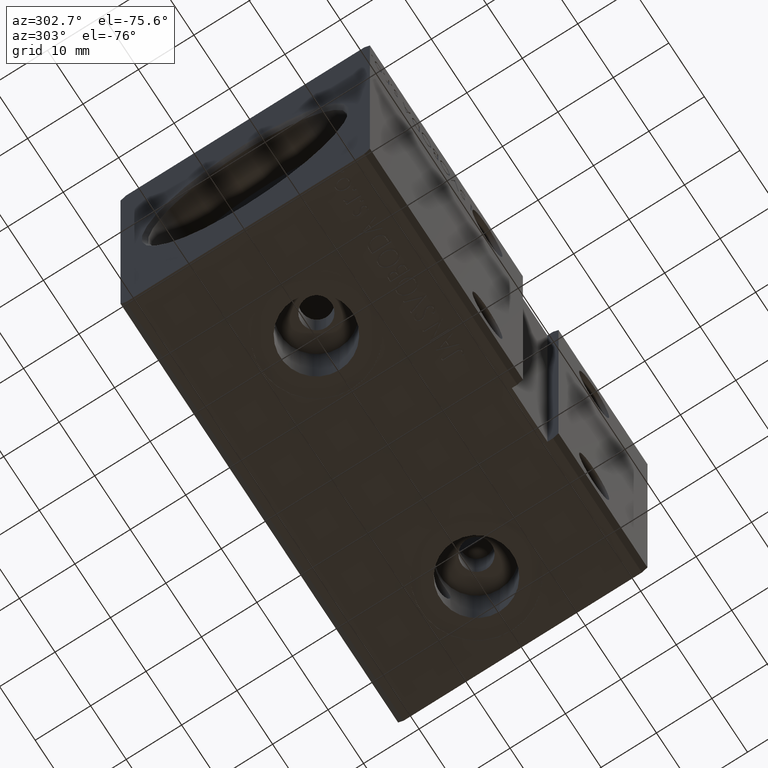
[diagram: clean part render]
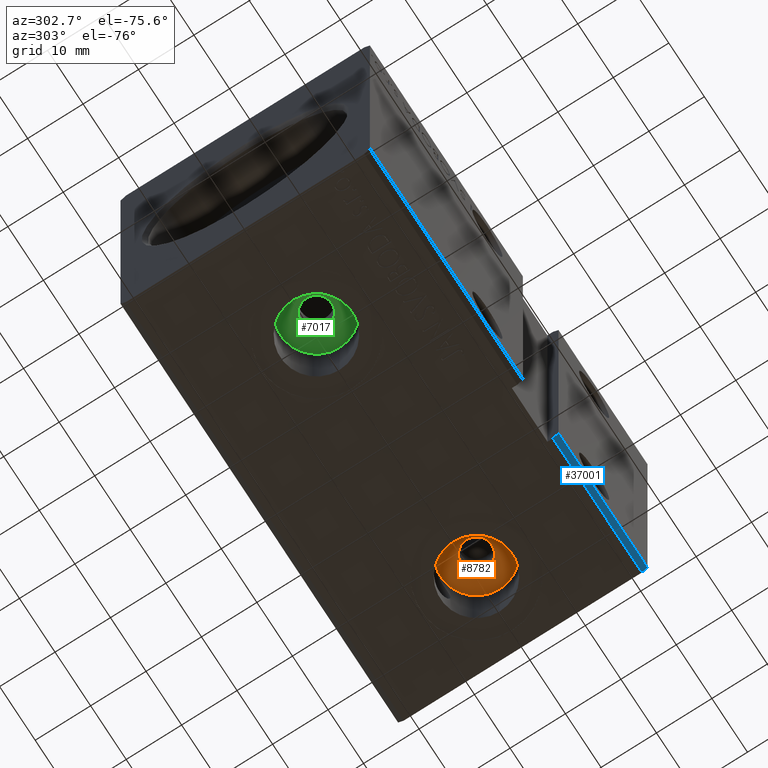
[diagram: same view with three faces highlighted in distinct colors, each labeled with its STEP entity id]
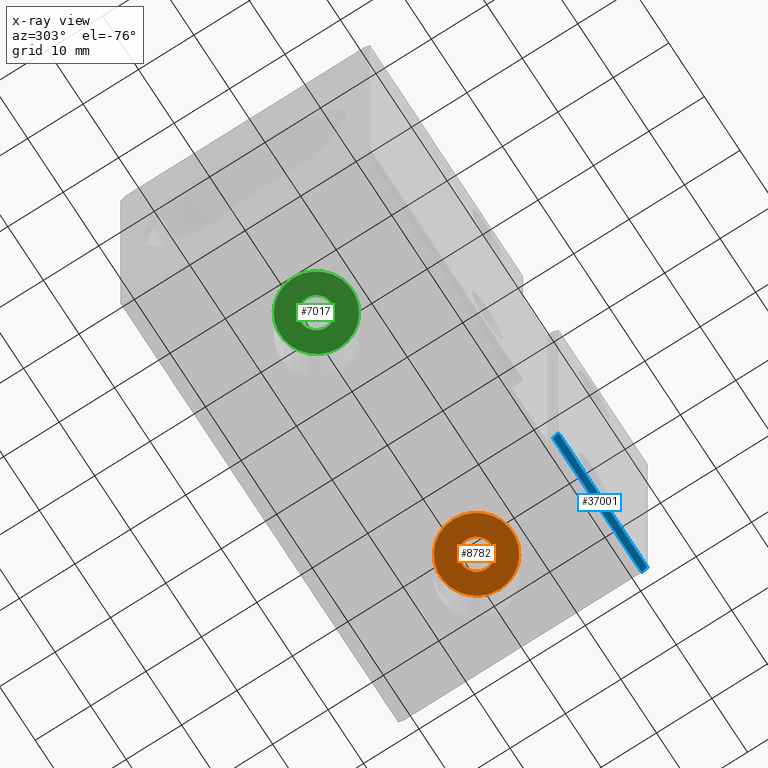
[diagram: x-ray of the same camera — body ghosted, the three highlighted faces saturated]
A machine part, auxiliary view with three faces highlighted in distinct colors.
The next image is the same camera in x-ray (body ghosted, the three faces saturated) — at least one of them is partly hidden behind the body in this view.
Their STEP definitions:

[orange] entity #8782 — the highlighted planar face has unit normal (0, 0, -1).
#402 = CIRCLE ( 'NONE', #33670, 2.750000000000009326 ) ;
#463 = DIRECTION ( 'NONE',  ( -1.000000000000000000, 0.000000000000000000, -0.000000000000000000 ) ) ;
#899 = CARTESIAN_POINT ( 'NONE',  ( 62.24999999999999289, 0.000000000000000000, -18.79999999999999716 ) ) ;
#1584 = EDGE_CURVE ( 'NONE', #32797, #23340, #14670, .T. ) ;
#2404 = ORIENTED_EDGE ( 'NONE', *, *, #20990, .T. ) ;
#3113 = VERTEX_POINT ( 'NONE', #19710 ) ;
#4243 = DIRECTION ( 'NONE',  ( 0.000000000000000000, 0.000000000000000000, -1.000000000000000000 ) ) ;
#4471 = EDGE_CURVE ( 'NONE', #23340, #32797, #402, .T. ) ;
#6120 = ORIENTED_EDGE ( 'NONE', *, *, #1584, .F. ) ;
#6466 = EDGE_LOOP ( 'NONE', ( #34544, #6120 ) ) ;
#7356 = ORIENTED_EDGE ( 'NONE', *, *, #25079, .T. ) ;
#8398 = CARTESIAN_POINT ( 'NONE',  ( 67.75000000000000000, 3.367778697655240240E-16, -18.79999999999999716 ) ) ;
#8782 = ADVANCED_FACE ( 'NONE', ( #16776, #10057 ), #31921, .T. ) ;
#9233 = DIRECTION ( 'NONE',  ( -1.000000000000000000, 0.000000000000000000, 0.000000000000000000 ) ) ;
#10057 = FACE_OUTER_BOUND ( 'NONE', #13329, .T. ) ;
#10256 = DIRECTION ( 'NONE',  ( 0.000000000000000000, 0.000000000000000000, -1.000000000000000000 ) ) ;
#13329 = EDGE_LOOP ( 'NONE', ( #7356, #2404 ) ) ;
#14670 = CIRCLE ( 'NONE', #30995, 2.750000000000009326 ) ;
#15730 = CARTESIAN_POINT ( 'NONE',  ( 58.50000000000000000, -2.932151633266152588E-15, -18.79999999999999716 ) ) ;
#16776 = FACE_BOUND ( 'NONE', #6466, .T. ) ;
#18602 = DIRECTION ( 'NONE',  ( 0.000000000000000000, 0.000000000000000000, -1.000000000000000000 ) ) ;
#19035 = DIRECTION ( 'NONE',  ( 0.000000000000000000, 0.000000000000000000, -1.000000000000000000 ) ) ;
#19710 = CARTESIAN_POINT ( 'NONE',  ( 71.50000000000001421, -2.136131213820373336E-15, -18.79999999999999716 ) ) ;
#20990 = EDGE_CURVE ( 'NONE', #3113, #34665, #31252, .T. ) ;
#22719 = CARTESIAN_POINT ( 'NONE',  ( 0.000000000000000000, 0.000000000000000000, -18.79999999999999716 ) ) ;
#23025 = CARTESIAN_POINT ( 'NONE',  ( 65.00000000000000000, 0.000000000000000000, -18.79999999999999716 ) ) ;
#23340 = VERTEX_POINT ( 'NONE', #899 ) ;
#24067 = AXIS2_PLACEMENT_3D ( 'NONE', #29852, #18602, #36792 ) ;
#25079 = EDGE_CURVE ( 'NONE', #34665, #3113, #31338, .T. ) ;
#25367 = CARTESIAN_POINT ( 'NONE',  ( 65.00000000000000000, 0.000000000000000000, -18.79999999999999716 ) ) ;
#27129 = AXIS2_PLACEMENT_3D ( 'NONE', #22719, #10256, #463 ) ;
#28426 = CARTESIAN_POINT ( 'NONE',  ( 65.00000000000000000, -2.932151633266152588E-15, -18.79999999999999716 ) ) ;
#29852 = CARTESIAN_POINT ( 'NONE',  ( 65.00000000000000000, -2.932151633266152588E-15, -18.79999999999999716 ) ) ;
#30691 = DIRECTION ( 'NONE',  ( -1.000000000000000000, 0.000000000000000000, 0.000000000000000000 ) ) ;
#30995 = AXIS2_PLACEMENT_3D ( 'NONE', #23025, #4243, #35289 ) ;
#31252 = CIRCLE ( 'NONE', #24067, 6.499999999999999112 ) ;
#31338 = CIRCLE ( 'NONE', #35257, 6.499999999999999112 ) ;
#31921 = PLANE ( 'NONE',  #27129 ) ;
#32797 = VERTEX_POINT ( 'NONE', #8398 ) ;
#33670 = AXIS2_PLACEMENT_3D ( 'NONE', #25367, #19035, #9233 ) ;
#33753 = DIRECTION ( 'NONE',  ( 0.000000000000000000, 0.000000000000000000, -1.000000000000000000 ) ) ;
#34544 = ORIENTED_EDGE ( 'NONE', *, *, #4471, .F. ) ;
#34665 = VERTEX_POINT ( 'NONE', #15730 ) ;
#35257 = AXIS2_PLACEMENT_3D ( 'NONE', #28426, #33753, #30691 ) ;
#35289 = DIRECTION ( 'NONE',  ( -1.000000000000000000, 0.000000000000000000, 0.000000000000000000 ) ) ;
#36792 = DIRECTION ( 'NONE',  ( -1.000000000000000000, 0.000000000000000000, 0.000000000000000000 ) ) ;

[blue] entity #37001 — the highlighted planar face has unit normal (-0, 0.7071, 0.7071).
#20 = VERTEX_POINT ( 'NONE', #36876 ) ;
#4182 = CARTESIAN_POINT ( 'NONE',  ( 78.00000000000000000, -22.50000000000001421, -31.50000000000000711 ) ) ;
#5259 = VECTOR ( 'NONE', #36488, 1000.000000000000000 ) ;
#5720 = EDGE_LOOP ( 'NONE', ( #35747, #18456, #19206, #19612 ) ) ;
#7973 = AXIS2_PLACEMENT_3D ( 'NONE', #38902, #13790, #29522 ) ;
#9644 = DIRECTION ( 'NONE',  ( 7.548521435979712811E-17, 0.7071067811865451302, -0.7071067811865500152 ) ) ;
#11567 = LINE ( 'NONE', #26466, #5259 ) ;
#11708 = EDGE_CURVE ( 'NONE', #31697, #17639, #21008, .T. ) ;
#12013 = CARTESIAN_POINT ( 'NONE',  ( 78.00000000000000000, -22.50000000000001421, -31.50000000000000711 ) ) ;
#12898 = LINE ( 'NONE', #40065, #24084 ) ;
#13790 = DIRECTION ( 'NONE',  ( -0.000000000000000000, 0.7071067811865500152, 0.7071067811865451302 ) ) ;
#14126 = CARTESIAN_POINT ( 'NONE',  ( 78.00000000000000000, -22.50000000000001421, -31.50000000000000711 ) ) ;
#15429 = VECTOR ( 'NONE', #36938, 1000.000000000000114 ) ;
#16076 = EDGE_CURVE ( 'NONE', #31697, #20, #35587, .T. ) ;
#16855 = PLANE ( 'NONE',  #7973 ) ;
#17639 = VERTEX_POINT ( 'NONE', #25071 ) ;
#18456 = ORIENTED_EDGE ( 'NONE', *, *, #25925, .T. ) ;
#19206 = ORIENTED_EDGE ( 'NONE', *, *, #31470, .F. ) ;
#19612 = ORIENTED_EDGE ( 'NONE', *, *, #11708, .F. ) ;
#20696 = VECTOR ( 'NONE', #29650, 1000.000000000000000 ) ;
#21008 = LINE ( 'NONE', #12013, #15429 ) ;
#23838 = CARTESIAN_POINT ( 'NONE',  ( 53.00000000000000711, -21.50000000000001776, -32.50000000000000711 ) ) ;
#23846 = VERTEX_POINT ( 'NONE', #23838 ) ;
#24084 = VECTOR ( 'NONE', #9644, 1000.000000000000114 ) ;
#25071 = CARTESIAN_POINT ( 'NONE',  ( 78.00000000000000000, -21.50000000000001776, -32.50000000000000711 ) ) ;
#25925 = EDGE_CURVE ( 'NONE', #20, #23846, #12898, .T. ) ;
#26054 = FACE_OUTER_BOUND ( 'NONE', #5720, .T. ) ;
#26466 = CARTESIAN_POINT ( 'NONE',  ( 78.00000000000000000, -21.50000000000001776, -32.50000000000000711 ) ) ;
#29522 = DIRECTION ( 'NONE',  ( 0.000000000000000000, -0.7071067811865451302, 0.7071067811865500152 ) ) ;
#29650 = DIRECTION ( 'NONE',  ( -1.000000000000000000, -0.000000000000000000, -0.000000000000000000 ) ) ;
#31470 = EDGE_CURVE ( 'NONE', #17639, #23846, #11567, .T. ) ;
#31697 = VERTEX_POINT ( 'NONE', #4182 ) ;
#35587 = LINE ( 'NONE', #14126, #20696 ) ;
#35747 = ORIENTED_EDGE ( 'NONE', *, *, #16076, .T. ) ;
#36488 = DIRECTION ( 'NONE',  ( -1.000000000000000000, -0.000000000000000000, -0.000000000000000000 ) ) ;
#36876 = CARTESIAN_POINT ( 'NONE',  ( 53.00000000000000711, -22.50000000000001066, -31.50000000000000000 ) ) ;
#36938 = DIRECTION ( 'NONE',  ( 0.000000000000000000, 0.7071067811865451302, -0.7071067811865500152 ) ) ;
#37001 = ADVANCED_FACE ( 'NONE', ( #26054 ), #16855, .F. ) ;
#38902 = CARTESIAN_POINT ( 'NONE',  ( 78.00000000000000000, -22.50000000000001421, -31.50000000000000711 ) ) ;
#40065 = CARTESIAN_POINT ( 'NONE',  ( 53.00000000000000711, -22.50000000000001421, -31.50000000000000711 ) ) ;

[green] entity #7017 — the highlighted planar face has unit normal (0, 0, -1).
#881 = CARTESIAN_POINT ( 'NONE',  ( 19.99999999999999645, 2.578758962896938545E-15, -18.79999999999999716 ) ) ;
#3891 = CARTESIAN_POINT ( 'NONE',  ( 19.99999999999999645, 2.578758962896938545E-15, -18.79999999999999716 ) ) ;
#3947 = CIRCLE ( 'NONE', #28057, 2.749999999999999112 ) ;
#4591 = EDGE_LOOP ( 'NONE', ( #32514, #17608 ) ) ;
#4618 = VERTEX_POINT ( 'NONE', #24712 ) ;
#5173 = CIRCLE ( 'NONE', #29303, 2.749999999999999112 ) ;
#5578 = AXIS2_PLACEMENT_3D ( 'NONE', #9128, #11788, #8518 ) ;
#5877 = CARTESIAN_POINT ( 'NONE',  ( 19.99999999999999645, 0.000000000000000000, -18.79999999999999716 ) ) ;
#6012 = ORIENTED_EDGE ( 'NONE', *, *, #29935, .F. ) ;
#6382 = CARTESIAN_POINT ( 'NONE',  ( 22.74999999999999645, 3.367778697655218053E-16, -18.79999999999999716 ) ) ;
#6506 = ORIENTED_EDGE ( 'NONE', *, *, #22154, .F. ) ;
#7017 = ADVANCED_FACE ( 'NONE', ( #21383, #18112 ), #34056, .T. ) ;
#7597 = CARTESIAN_POINT ( 'NONE',  ( 19.99999999999999645, 0.000000000000000000, -18.79999999999999716 ) ) ;
#8518 = DIRECTION ( 'NONE',  ( -1.000000000000000000, 0.000000000000000000, -0.000000000000000000 ) ) ;
#8765 = VERTEX_POINT ( 'NONE', #13956 ) ;
#9128 = CARTESIAN_POINT ( 'NONE',  ( 19.99999999999999645, 2.578758962896938545E-15, -18.79999999999999716 ) ) ;
#11788 = DIRECTION ( 'NONE',  ( 0.000000000000000000, 0.000000000000000000, -1.000000000000000000 ) ) ;
#13328 = DIRECTION ( 'NONE',  ( -1.000000000000000000, 0.000000000000000000, 0.000000000000000000 ) ) ;
#13779 = AXIS2_PLACEMENT_3D ( 'NONE', #881, #16791, #13328 ) ;
#13956 = CARTESIAN_POINT ( 'NONE',  ( 17.24999999999999645, 0.000000000000000000, -18.79999999999999716 ) ) ;
#14206 = EDGE_CURVE ( 'NONE', #4618, #29803, #25278, .T. ) ;
#16791 = DIRECTION ( 'NONE',  ( 0.000000000000000000, 0.000000000000000000, -1.000000000000000000 ) ) ;
#17395 = DIRECTION ( 'NONE',  ( -1.000000000000000000, 0.000000000000000000, 0.000000000000000000 ) ) ;
#17608 = ORIENTED_EDGE ( 'NONE', *, *, #33468, .T. ) ;
#18112 = FACE_OUTER_BOUND ( 'NONE', #4591, .T. ) ;
#18328 = DIRECTION ( 'NONE',  ( 0.000000000000000000, 0.000000000000000000, -1.000000000000000000 ) ) ;
#21383 = FACE_BOUND ( 'NONE', #30575, .T. ) ;
#22154 = EDGE_CURVE ( 'NONE', #8765, #39935, #5173, .T. ) ;
#24593 = AXIS2_PLACEMENT_3D ( 'NONE', #3891, #38373, #28397 ) ;
#24712 = CARTESIAN_POINT ( 'NONE',  ( 13.49999999999999822, 2.578758962896938545E-15, -18.79999999999999716 ) ) ;
#25278 = CIRCLE ( 'NONE', #24593, 6.499999999999999112 ) ;
#28057 = AXIS2_PLACEMENT_3D ( 'NONE', #7597, #32520, #17395 ) ;
#28397 = DIRECTION ( 'NONE',  ( -1.000000000000000000, 0.000000000000000000, 0.000000000000000000 ) ) ;
#28668 = CARTESIAN_POINT ( 'NONE',  ( 26.49999999999999645, 3.374779382342717797E-15, -18.79999999999999716 ) ) ;
#29303 = AXIS2_PLACEMENT_3D ( 'NONE', #5877, #18328, #37124 ) ;
#29803 = VERTEX_POINT ( 'NONE', #28668 ) ;
#29935 = EDGE_CURVE ( 'NONE', #39935, #8765, #3947, .T. ) ;
#30575 = EDGE_LOOP ( 'NONE', ( #6506, #6012 ) ) ;
#30776 = CIRCLE ( 'NONE', #13779, 6.499999999999999112 ) ;
#32514 = ORIENTED_EDGE ( 'NONE', *, *, #14206, .T. ) ;
#32520 = DIRECTION ( 'NONE',  ( 0.000000000000000000, 0.000000000000000000, -1.000000000000000000 ) ) ;
#33468 = EDGE_CURVE ( 'NONE', #29803, #4618, #30776, .T. ) ;
#34056 = PLANE ( 'NONE',  #5578 ) ;
#37124 = DIRECTION ( 'NONE',  ( -1.000000000000000000, 0.000000000000000000, 0.000000000000000000 ) ) ;
#38373 = DIRECTION ( 'NONE',  ( 0.000000000000000000, 0.000000000000000000, -1.000000000000000000 ) ) ;
#39935 = VERTEX_POINT ( 'NONE', #6382 ) ;